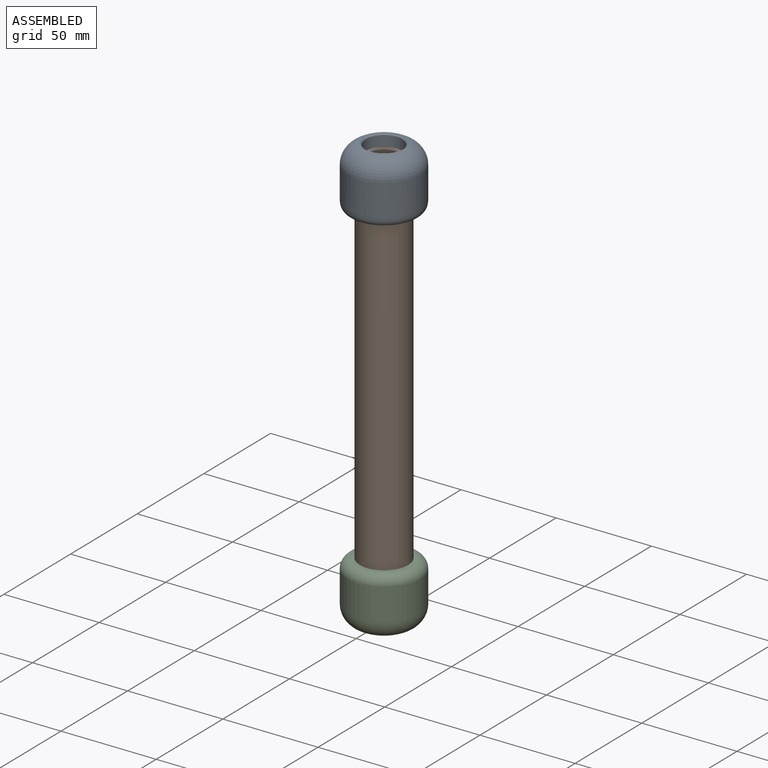
[diagram: assembled view]
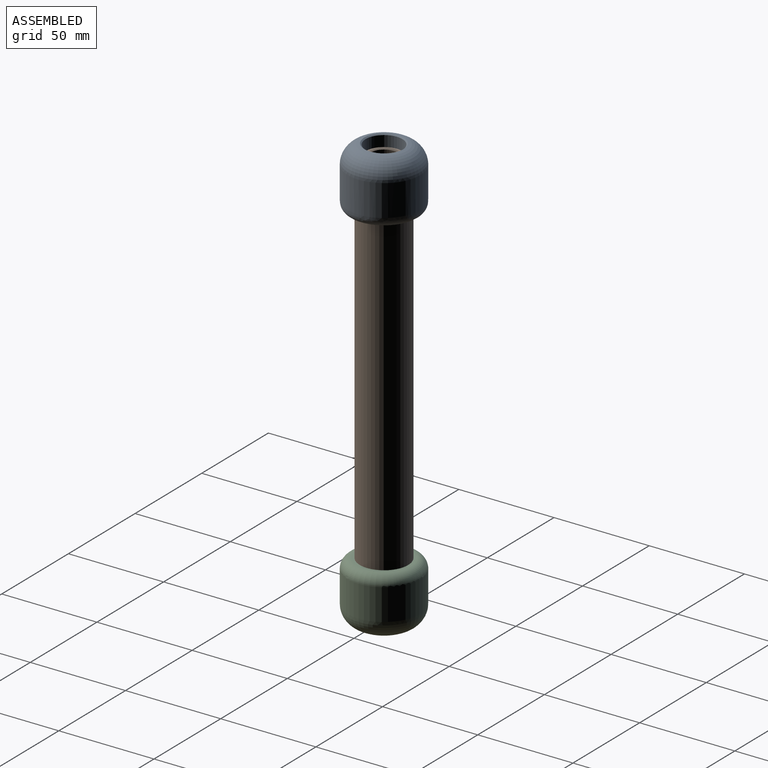
[diagram: assembled view, second angle]
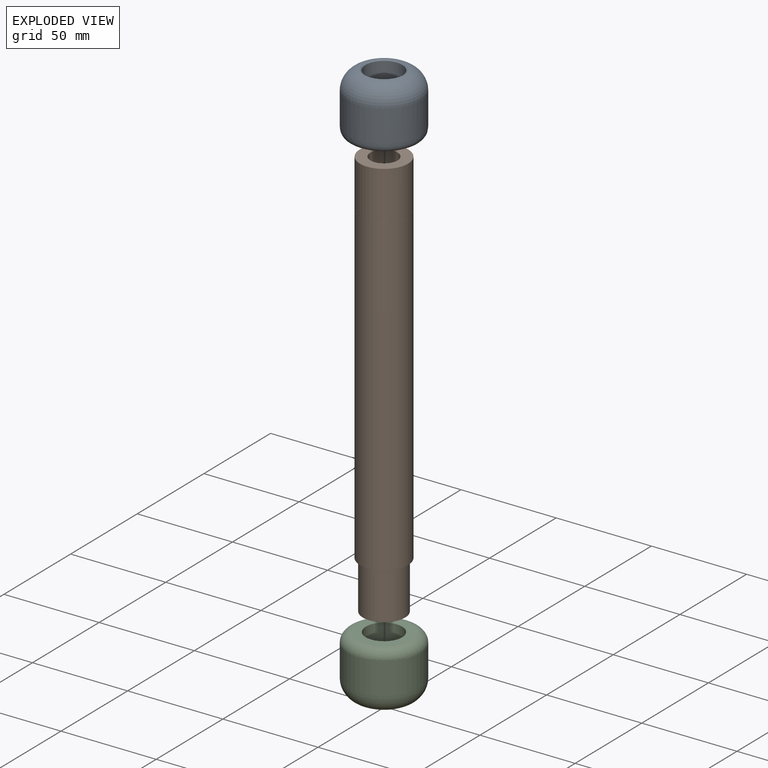
[diagram: exploded view]
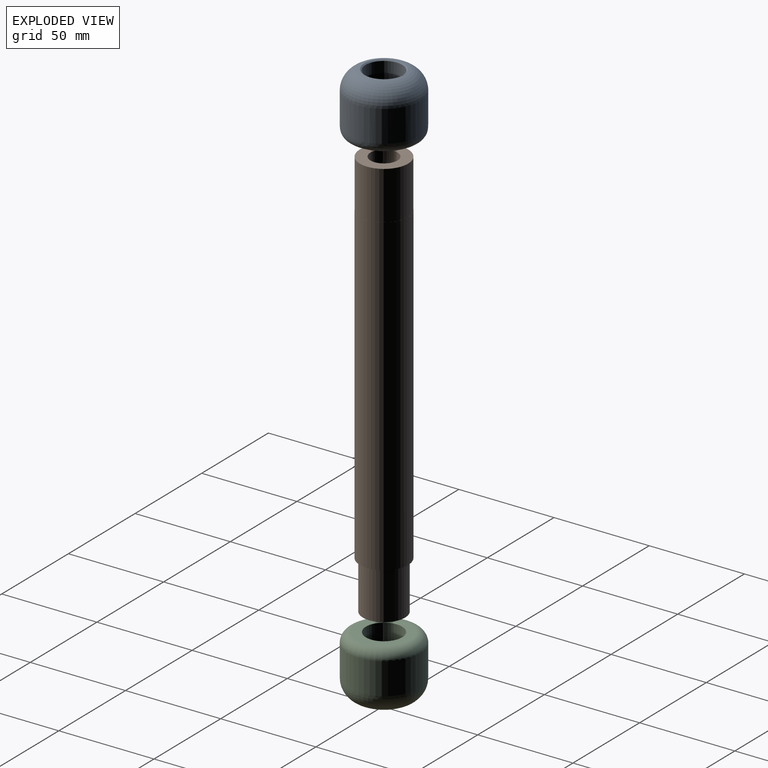
[diagram: exploded view, second angle]
ASSEMBLY  parts=3 mates=2
PART A: 9 faces, bbox 38.1x38.1x31.7 mm
  f0: cylinder r=19.05mm len=38.1mm, axis (0,0,1), area 1979.6mm2, adj f5,f6
  f1: plane 27.95x27.95mm, normal (0,0,-1), area 47.1mm2, adj f6,f7
  f2: cylinder r=12.66mm len=25.32mm, axis (0,0,-1), area 1960.1mm2, adj f3,f7
  f3: plane 25.32x25.32mm, normal (0,0,-1), area 211mm2, adj f2,f4
  f4: cylinder r=9.65mm len=19.3mm, axis (0,0,1), area 345.3mm2, adj f3,f8
  f5: torus R=8.89mm, axis (0,0,1), area 1453.2mm2, adj f0,f8
  f6: bspline ~38.1x38.1mm, area 897.1mm2, adj f0,f1
  f7: cone r=12.66mm half-angle=45deg, axis (0,0,-1), area 88.3mm2, adj f1,f2
  f8: cone r=9.65mm half-angle=49.1deg, axis (0,0,1), area 55.8mm2, adj f4,f5
PART B: 10 faces, bbox 25.4x25.4x215.9 mm
  f0: cylinder r=12.7mm len=165.1mm, axis (0,0,1), area 13174.4mm2, adj f2,f5
  f1: cylinder r=11.11mm len=25.4mm, axis (0,0,-1), area 1773.5mm2, adj f2,f3
  f2: plane 25.4x25.4mm, normal (0,0,-1), area 118.8mm2, adj f0,f1
  f3: plane 22.23x22.23mm, normal (0,0,-1), area 387.9mm2, adj f1
  f4: cylinder r=12.67mm len=25.4mm, axis (0,0,1), area 2022.8mm2, adj f5,f9
  f5: plane 25.4x25.4mm, normal (0,0,1), area 2mm2, adj f0,f4
  f6: plane 12.38x12.38mm, normal (0,0,1), area 120.3mm2, adj f7
  f7: cone r=7.1mm half-angle=2.3deg, axis (0,0,1), area 933.8mm2, adj f6,f8
  f8: cylinder r=7.1mm len=14.2mm, axis (0,0,1), area 283.2mm2, adj f7,f9
  f9: plane 25.35x25.35mm, normal (0,0,1), area 346.3mm2, adj f4,f8
PART C: 9 faces, bbox 41.2x41.2x31.8 mm
  f0: cylinder r=19.05mm len=38.1mm, axis (0,0,1), area 1976.2mm2, adj f7,f8
  f1: plane 17.78x17.78mm, normal (0,0,-1), area 248.3mm2, adj f8
  f2: plane 27.94x27.94mm, normal (0,0,1), area 328.1mm2, adj f3,f7
  f3: cylinder r=9.53mm len=19.05mm, axis (0,0,1), area 1140.1mm2, adj f2,f4
  f4: plane 19.05x19.05mm, normal (0,0,1), area 2.3mm2, adj f3,f5
  f5: cylinder r=9.49mm len=18.97mm, axis (0,0,1), area 378.5mm2, adj f4,f6
  f6: plane 18.97x18.97mm, normal (0,0,1), area 282.7mm2, adj f5
  f7: torus R=13.97mm, axis (0,0,1), area 862.6mm2, adj f0,f2
  f8: torus R=8.89mm, axis (0,0,1), area 1540mm2, adj f0,f1
PLACE A t=(-0.61,0.36,112.83)mm
PLACE B t=(-0.61,0.36,106.48)mm
PLACE C t=(-0.61,0.36,-84.02)mm
MATE slider A.f4 <-> B.f0  axis (0,0,-1) through (-0.61,0.36,106.48)mm
MATE slider C.f5 <-> B.f1  axis (0,0,1) through (-0.61,0.36,-109.42)mm
